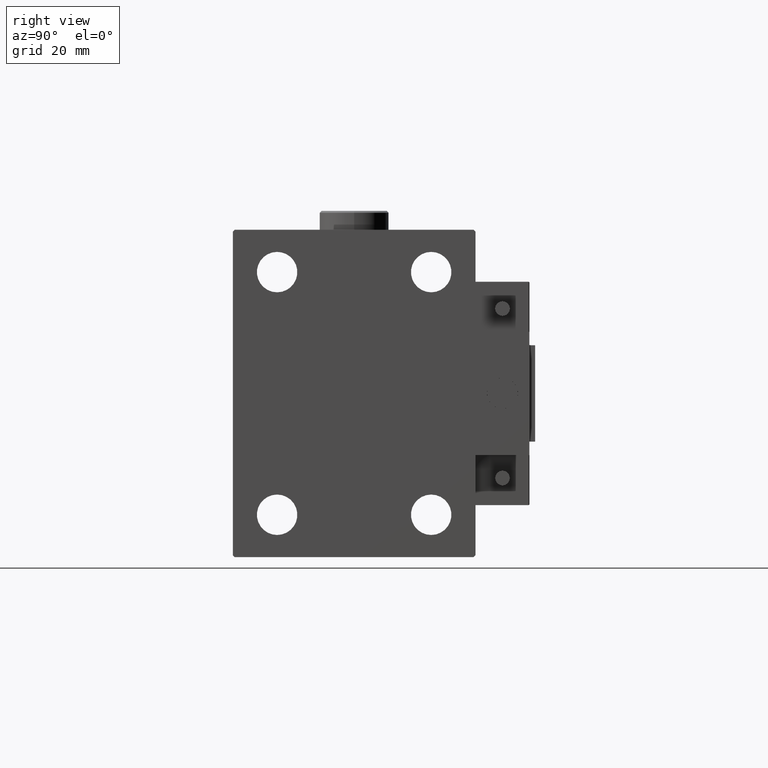
[diagram: clean part render]
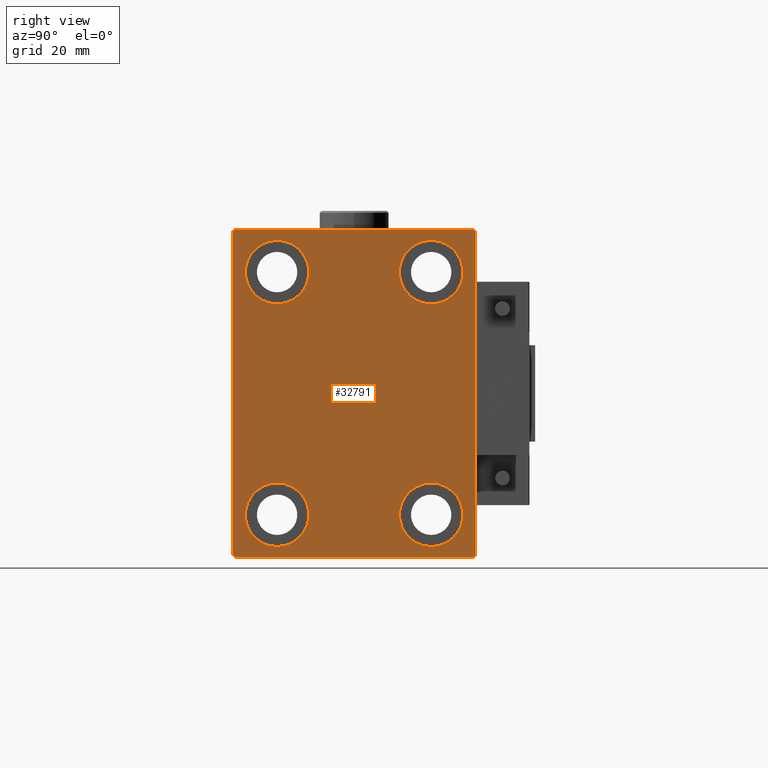
[diagram: same view with one face highlighted and labeled with its STEP entity id]
A machine part, right view. The second image highlights one B-rep face of the part: STEP entity #32791.
In plain terms, the highlighted planar face has unit normal (1, 0, 0).
Its self-contained STEP definition (entity closure, byte-faithful):
#82 = CARTESIAN_POINT ( 'NONE',  ( 73.00000000000000000, 31.00000000000000000, 42.50000000000000711 ) ) ;
#410 = ORIENTED_EDGE ( 'NONE', *, *, #50649, .T. ) ;
#460 = EDGE_CURVE ( 'NONE', #40414, #42171, #21223, .T. ) ;
#619 = CARTESIAN_POINT ( 'NONE',  ( 73.00000000000000000, -31.50000000000000000, 42.49999999999999289 ) ) ;
#752 = CARTESIAN_POINT ( 'NONE',  ( 73.00000000000000000, 36.75000000000001421, -36.75000000000001421 ) ) ;
#908 = DIRECTION ( 'NONE',  ( -0.000000000000000000, -0.7071067811865474617, 0.7071067811865474617 ) ) ;
#1120 = EDGE_LOOP ( 'NONE', ( #45996, #38227 ) ) ;
#1387 = DIRECTION ( 'NONE',  ( 0.000000000000000000, 0.000000000000000000, 1.000000000000000000 ) ) ;
#2027 = CARTESIAN_POINT ( 'NONE',  ( 73.00000000000000000, 0.000000000000000000, 0.000000000000000000 ) ) ;
#2093 = VERTEX_POINT ( 'NONE', #8256 ) ;
#2613 = DIRECTION ( 'NONE',  ( 0.000000000000000000, 0.000000000000000000, 1.000000000000000000 ) ) ;
#2833 = EDGE_CURVE ( 'NONE', #47590, #3360, #3461, .T. ) ;
#3273 = CIRCLE ( 'NONE', #33980, 8.249999999999992895 ) ;
#3360 = VERTEX_POINT ( 'NONE', #18105 ) ;
#3404 = AXIS2_PLACEMENT_3D ( 'NONE', #2027, #17879, #49798 ) ;
#3461 = LINE ( 'NONE', #51227, #7946 ) ;
#3466 = EDGE_CURVE ( 'NONE', #43475, #47590, #40383, .T. ) ;
#3817 = VECTOR ( 'NONE', #48752, 1000.000000000000114 ) ;
#3865 = CARTESIAN_POINT ( 'NONE',  ( 73.00000000000000000, -31.50000000000000000, -42.00000000000000711 ) ) ;
#3981 = CIRCLE ( 'NONE', #33001, 8.250000000000000000 ) ;
#4231 = DIRECTION ( 'NONE',  ( 0.000000000000000000, 1.000000000000000000, 0.000000000000000000 ) ) ;
#4701 = EDGE_LOOP ( 'NONE', ( #45991, #47863 ) ) ;
#5139 = EDGE_CURVE ( 'NONE', #3360, #46696, #31590, .T. ) ;
#5438 = CARTESIAN_POINT ( 'NONE',  ( 73.00000000000000000, 19.99999999999999645, -23.24999999999999289 ) ) ;
#5936 = FACE_OUTER_BOUND ( 'NONE', #14622, .T. ) ;
#6515 = CARTESIAN_POINT ( 'NONE',  ( 73.00000000000000000, -19.99999999999999645, 31.50000000000000000 ) ) ;
#6553 = VERTEX_POINT ( 'NONE', #17214 ) ;
#7187 = VERTEX_POINT ( 'NONE', #21219 ) ;
#7928 = DIRECTION ( 'NONE',  ( 0.000000000000000000, -1.632680918566406300E-16, 1.000000000000000000 ) ) ;
#7946 = VECTOR ( 'NONE', #19303, 1000.000000000000000 ) ;
#8121 = EDGE_CURVE ( 'NONE', #7187, #35233, #3981, .T. ) ;
#8212 = AXIS2_PLACEMENT_3D ( 'NONE', #48326, #12779, #28628 ) ;
#8256 = CARTESIAN_POINT ( 'NONE',  ( 73.00000000000000000, -20.00000000000000355, -39.74999999999999289 ) ) ;
#8538 = CARTESIAN_POINT ( 'NONE',  ( 73.00000000000000000, 19.99999999999999645, -31.49999999999999289 ) ) ;
#9220 = CARTESIAN_POINT ( 'NONE',  ( 73.00000000000000000, 36.75000000000000711, 36.75000000000000711 ) ) ;
#9669 = VECTOR ( 'NONE', #16006, 1000.000000000000114 ) ;
#10455 = DIRECTION ( 'NONE',  ( 0.000000000000000000, 0.000000000000000000, 1.000000000000000000 ) ) ;
#11107 = FACE_BOUND ( 'NONE', #14110, .T. ) ;
#11332 = VECTOR ( 'NONE', #4231, 1000.000000000000000 ) ;
#11656 = DIRECTION ( 'NONE',  ( -1.000000000000000000, -0.000000000000000000, -0.000000000000000000 ) ) ;
#11803 = EDGE_CURVE ( 'NONE', #6553, #41277, #3273, .T. ) ;
#12779 = DIRECTION ( 'NONE',  ( -1.000000000000000000, -0.000000000000000000, -0.000000000000000000 ) ) ;
#13858 = CARTESIAN_POINT ( 'NONE',  ( 73.00000000000000000, 20.00000000000000355, 31.50000000000000000 ) ) ;
#14110 = EDGE_LOOP ( 'NONE', ( #43076, #48907 ) ) ;
#14622 = EDGE_LOOP ( 'NONE', ( #25203, #49361, #39513, #24343, #410, #26191, #32472, #44466 ) ) ;
#15015 = FACE_BOUND ( 'NONE', #1120, .T. ) ;
#15445 = EDGE_CURVE ( 'NONE', #42807, #49029, #24382, .T. ) ;
#15815 = DIRECTION ( 'NONE',  ( 0.000000000000000000, 0.000000000000000000, 1.000000000000000000 ) ) ;
#16006 = DIRECTION ( 'NONE',  ( 0.000000000000000000, -0.7071067811865474617, -0.7071067811865474617 ) ) ;
#16609 = VERTEX_POINT ( 'NONE', #42783 ) ;
#17154 = ORIENTED_EDGE ( 'NONE', *, *, #24143, .T. ) ;
#17214 = CARTESIAN_POINT ( 'NONE',  ( 73.00000000000000000, -19.99999999999999645, 39.74999999999999289 ) ) ;
#17879 = DIRECTION ( 'NONE',  ( 1.000000000000000000, 0.000000000000000000, 0.000000000000000000 ) ) ;
#18105 = CARTESIAN_POINT ( 'NONE',  ( 73.00000000000000000, -31.00000000000000000, 42.49999999999999289 ) ) ;
#18297 = DIRECTION ( 'NONE',  ( -1.000000000000000000, -0.000000000000000000, -0.000000000000000000 ) ) ;
#19303 = DIRECTION ( 'NONE',  ( 0.000000000000000000, -1.000000000000000000, -2.202823461557850341E-16 ) ) ;
#19462 = EDGE_CURVE ( 'NONE', #46696, #42807, #31568, .T. ) ;
#20074 = EDGE_CURVE ( 'NONE', #16609, #50606, #24926, .T. ) ;
#21219 = CARTESIAN_POINT ( 'NONE',  ( 73.00000000000000000, 19.99999999999999645, -39.74999999999999289 ) ) ;
#21223 = CIRCLE ( 'NONE', #42773, 8.249999999999992895 ) ;
#21895 = DIRECTION ( 'NONE',  ( -1.000000000000000000, -0.000000000000000000, -0.000000000000000000 ) ) ;
#22043 = FACE_BOUND ( 'NONE', #4701, .T. ) ;
#22364 = DIRECTION ( 'NONE',  ( -1.000000000000000000, -0.000000000000000000, -0.000000000000000000 ) ) ;
#22883 = EDGE_CURVE ( 'NONE', #42171, #40414, #42966, .T. ) ;
#23040 = CARTESIAN_POINT ( 'NONE',  ( 73.00000000000000000, 20.00000000000000355, 23.25000000000000355 ) ) ;
#23646 = VERTEX_POINT ( 'NONE', #46677 ) ;
#23777 = CARTESIAN_POINT ( 'NONE',  ( 73.00000000000000000, -31.50000000000000000, 41.99999999999999289 ) ) ;
#23989 = CARTESIAN_POINT ( 'NONE',  ( 73.00000000000000000, 31.50000000000001421, -42.00000000000000711 ) ) ;
#24143 = EDGE_CURVE ( 'NONE', #35233, #7187, #47993, .T. ) ;
#24343 = ORIENTED_EDGE ( 'NONE', *, *, #15445, .T. ) ;
#24382 = LINE ( 'NONE', #44612, #3817 ) ;
#24926 = LINE ( 'NONE', #752, #28829 ) ;
#25203 = ORIENTED_EDGE ( 'NONE', *, *, #2833, .T. ) ;
#26191 = ORIENTED_EDGE ( 'NONE', *, *, #20074, .T. ) ;
#27502 = CARTESIAN_POINT ( 'NONE',  ( 73.00000000000000000, -19.99999999999999645, 31.50000000000000000 ) ) ;
#27599 = EDGE_CURVE ( 'NONE', #41277, #6553, #49656, .T. ) ;
#27642 = CARTESIAN_POINT ( 'NONE',  ( 73.00000000000000000, -20.00000000000000355, -31.49999999999999289 ) ) ;
#28203 = CIRCLE ( 'NONE', #33875, 8.250000000000000000 ) ;
#28540 = DIRECTION ( 'NONE',  ( -1.000000000000000000, -0.000000000000000000, -0.000000000000000000 ) ) ;
#28544 = CARTESIAN_POINT ( 'NONE',  ( 73.00000000000000000, -31.00000000000000000, -42.50000000000000711 ) ) ;
#28628 = DIRECTION ( 'NONE',  ( 0.000000000000000000, 0.000000000000000000, 1.000000000000000000 ) ) ;
#28688 = DIRECTION ( 'NONE',  ( -1.000000000000000000, -0.000000000000000000, -0.000000000000000000 ) ) ;
#28829 = VECTOR ( 'NONE', #48519, 1000.000000000000114 ) ;
#29240 = EDGE_CURVE ( 'NONE', #23646, #2093, #28203, .T. ) ;
#30207 = CARTESIAN_POINT ( 'NONE',  ( 73.00000000000000000, -20.00000000000000355, -31.49999999999999289 ) ) ;
#30501 = DIRECTION ( 'NONE',  ( 0.000000000000000000, 0.000000000000000000, 1.000000000000000000 ) ) ;
#31204 = VECTOR ( 'NONE', #7928, 1000.000000000000000 ) ;
#31568 = LINE ( 'NONE', #619, #46144 ) ;
#31590 = LINE ( 'NONE', #39883, #9669 ) ;
#32341 = LINE ( 'NONE', #48145, #31204 ) ;
#32472 = ORIENTED_EDGE ( 'NONE', *, *, #50357, .T. ) ;
#32791 = ADVANCED_FACE ( 'NONE', ( #50561, #15015, #22043, #11107, #5936 ), #37610, .T. ) ;
#33001 = AXIS2_PLACEMENT_3D ( 'NONE', #8538, #28540, #47476 ) ;
#33606 = CARTESIAN_POINT ( 'NONE',  ( 73.00000000000000000, 20.00000000000000355, 31.50000000000000000 ) ) ;
#33870 = AXIS2_PLACEMENT_3D ( 'NONE', #13858, #28688, #1387 ) ;
#33875 = AXIS2_PLACEMENT_3D ( 'NONE', #27642, #39312, #35690 ) ;
#33980 = AXIS2_PLACEMENT_3D ( 'NONE', #6515, #22364, #2613 ) ;
#35233 = VERTEX_POINT ( 'NONE', #5438 ) ;
#35690 = DIRECTION ( 'NONE',  ( 0.000000000000000000, 0.000000000000000000, 1.000000000000000000 ) ) ;
#37610 = PLANE ( 'NONE',  #3404 ) ;
#38093 = CARTESIAN_POINT ( 'NONE',  ( 73.00000000000000000, -19.99999999999999645, 23.25000000000000355 ) ) ;
#38227 = ORIENTED_EDGE ( 'NONE', *, *, #11803, .T. ) ;
#39312 = DIRECTION ( 'NONE',  ( -1.000000000000000000, -0.000000000000000000, -0.000000000000000000 ) ) ;
#39513 = ORIENTED_EDGE ( 'NONE', *, *, #19462, .T. ) ;
#39811 = LINE ( 'NONE', #47820, #11332 ) ;
#39883 = CARTESIAN_POINT ( 'NONE',  ( 73.00000000000000000, -36.75000000000000000, 36.75000000000000000 ) ) ;
#40383 = LINE ( 'NONE', #9220, #45247 ) ;
#40414 = VERTEX_POINT ( 'NONE', #48794 ) ;
#41277 = VERTEX_POINT ( 'NONE', #38093 ) ;
#42171 = VERTEX_POINT ( 'NONE', #23040 ) ;
#42773 = AXIS2_PLACEMENT_3D ( 'NONE', #33606, #18297, #30501 ) ;
#42783 = CARTESIAN_POINT ( 'NONE',  ( 73.00000000000000000, 31.00000000000001421, -42.50000000000000711 ) ) ;
#42807 = VERTEX_POINT ( 'NONE', #3865 ) ;
#42904 = EDGE_LOOP ( 'NONE', ( #48602, #17154 ) ) ;
#42966 = CIRCLE ( 'NONE', #33870, 8.249999999999992895 ) ;
#43076 = ORIENTED_EDGE ( 'NONE', *, *, #46029, .T. ) ;
#43212 = CARTESIAN_POINT ( 'NONE',  ( 73.00000000000000000, 31.50000000000000000, 42.00000000000000711 ) ) ;
#43475 = VERTEX_POINT ( 'NONE', #43212 ) ;
#43489 = DIRECTION ( 'NONE',  ( 0.000000000000000000, 0.000000000000000000, -1.000000000000000000 ) ) ;
#44466 = ORIENTED_EDGE ( 'NONE', *, *, #3466, .T. ) ;
#44612 = CARTESIAN_POINT ( 'NONE',  ( 73.00000000000000000, -36.75000000000000711, -36.75000000000000711 ) ) ;
#45247 = VECTOR ( 'NONE', #908, 1000.000000000000114 ) ;
#45511 = AXIS2_PLACEMENT_3D ( 'NONE', #27502, #11656, #15815 ) ;
#45991 = ORIENTED_EDGE ( 'NONE', *, *, #22883, .T. ) ;
#45996 = ORIENTED_EDGE ( 'NONE', *, *, #27599, .T. ) ;
#46029 = EDGE_CURVE ( 'NONE', #2093, #23646, #48411, .T. ) ;
#46144 = VECTOR ( 'NONE', #43489, 1000.000000000000000 ) ;
#46677 = CARTESIAN_POINT ( 'NONE',  ( 73.00000000000000000, -20.00000000000000355, -23.24999999999999289 ) ) ;
#46696 = VERTEX_POINT ( 'NONE', #23777 ) ;
#47476 = DIRECTION ( 'NONE',  ( 0.000000000000000000, 0.000000000000000000, 1.000000000000000000 ) ) ;
#47590 = VERTEX_POINT ( 'NONE', #82 ) ;
#47820 = CARTESIAN_POINT ( 'NONE',  ( 73.00000000000000000, -31.50000000000000000, -42.50000000000000711 ) ) ;
#47863 = ORIENTED_EDGE ( 'NONE', *, *, #460, .T. ) ;
#47993 = CIRCLE ( 'NONE', #8212, 8.250000000000000000 ) ;
#48145 = CARTESIAN_POINT ( 'NONE',  ( 73.00000000000000000, 31.50000000000001421, -42.50000000000000711 ) ) ;
#48326 = CARTESIAN_POINT ( 'NONE',  ( 73.00000000000000000, 19.99999999999999645, -31.49999999999999289 ) ) ;
#48411 = CIRCLE ( 'NONE', #50898, 8.250000000000000000 ) ;
#48519 = DIRECTION ( 'NONE',  ( -0.000000000000000000, 0.7071067811865474617, 0.7071067811865474617 ) ) ;
#48602 = ORIENTED_EDGE ( 'NONE', *, *, #8121, .T. ) ;
#48752 = DIRECTION ( 'NONE',  ( -0.000000000000000000, 0.7071067811865474617, -0.7071067811865474617 ) ) ;
#48794 = CARTESIAN_POINT ( 'NONE',  ( 73.00000000000000000, 20.00000000000000355, 39.74999999999999289 ) ) ;
#48907 = ORIENTED_EDGE ( 'NONE', *, *, #29240, .T. ) ;
#49029 = VERTEX_POINT ( 'NONE', #28544 ) ;
#49361 = ORIENTED_EDGE ( 'NONE', *, *, #5139, .T. ) ;
#49656 = CIRCLE ( 'NONE', #45511, 8.249999999999992895 ) ;
#49798 = DIRECTION ( 'NONE',  ( 0.000000000000000000, 0.000000000000000000, -1.000000000000000000 ) ) ;
#50357 = EDGE_CURVE ( 'NONE', #50606, #43475, #32341, .T. ) ;
#50561 = FACE_BOUND ( 'NONE', #42904, .T. ) ;
#50606 = VERTEX_POINT ( 'NONE', #23989 ) ;
#50649 = EDGE_CURVE ( 'NONE', #49029, #16609, #39811, .T. ) ;
#50898 = AXIS2_PLACEMENT_3D ( 'NONE', #30207, #21895, #10455 ) ;
#51227 = CARTESIAN_POINT ( 'NONE',  ( 73.00000000000000000, 31.50000000000000000, 42.50000000000000711 ) ) ;